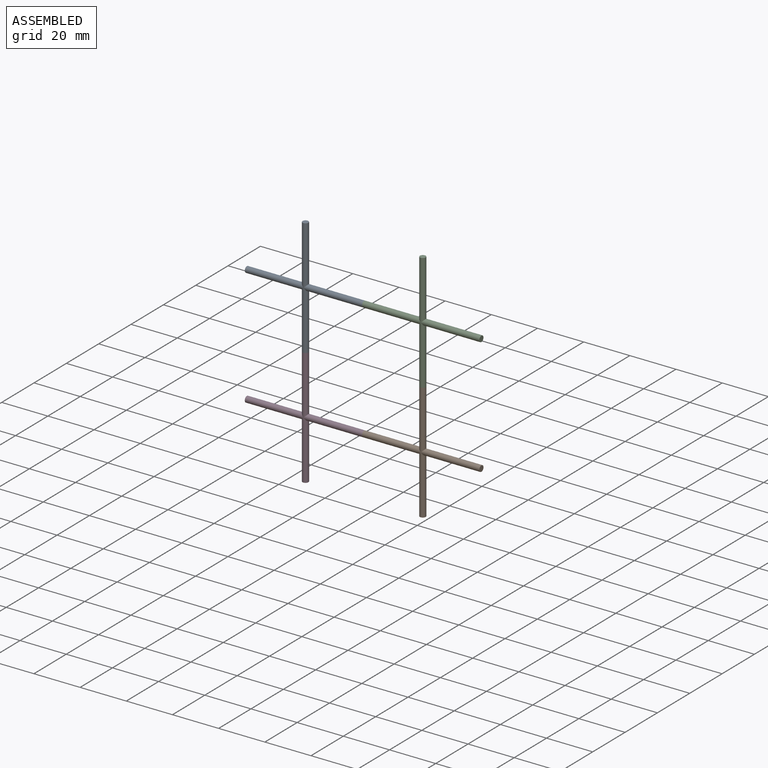
[diagram: assembled view]
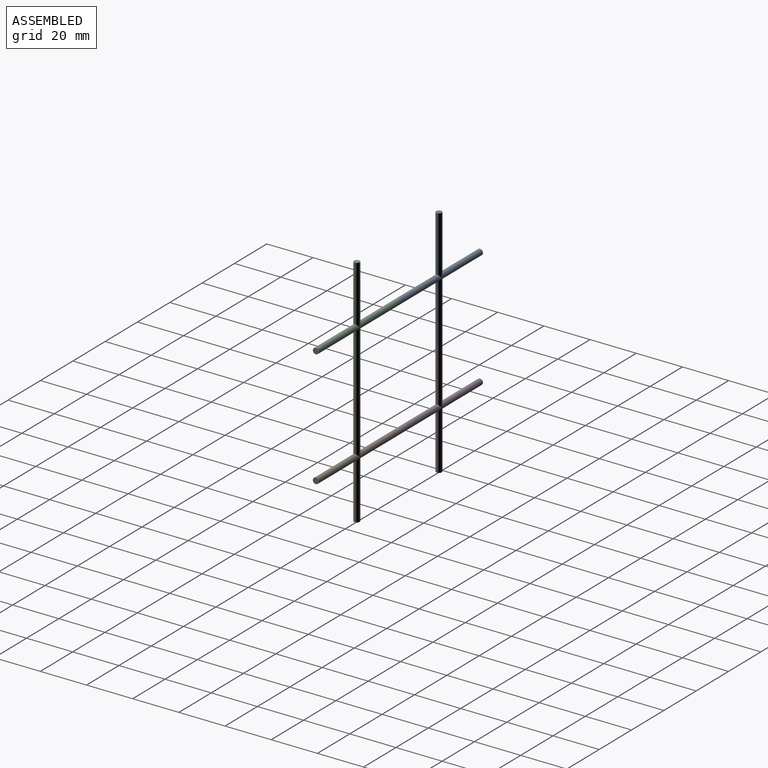
[diagram: assembled view, second angle]
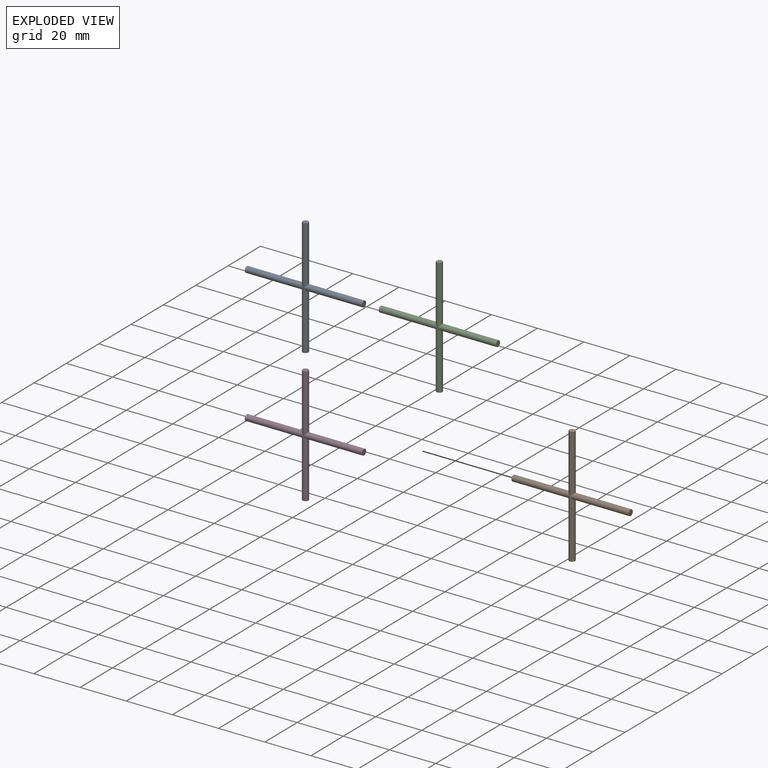
[diagram: exploded view]
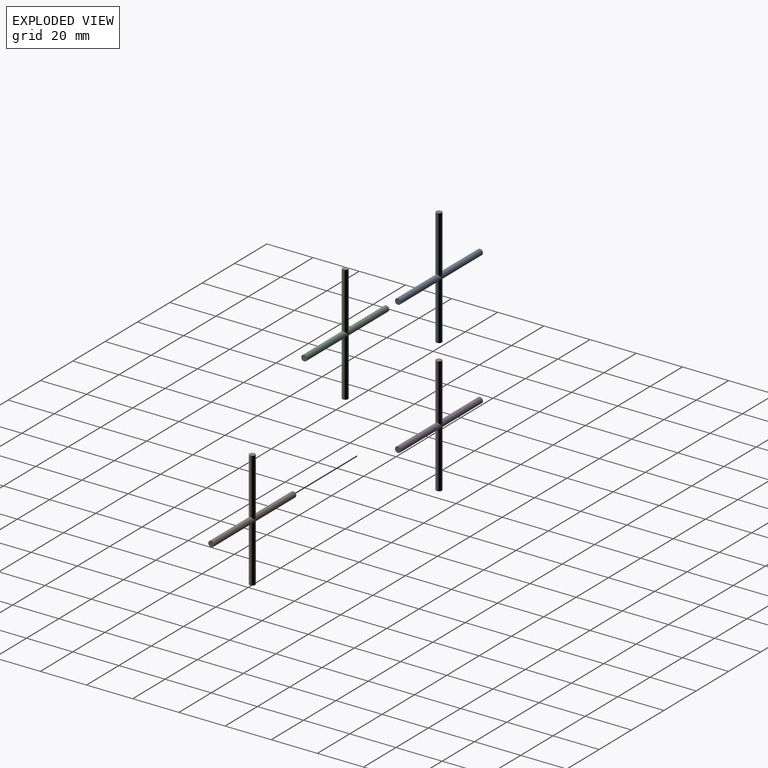
[diagram: exploded view, second angle]
ASSEMBLY  parts=4 mates=4
PART A: 8 faces, bbox 50.8x2.5x50.8 mm
  f0: cylinder r=1.27mm len=25.4mm, axis (0,0,-1), area 196.2mm2, adj f1,f3,f6
  f1: plane 2.54x2.54mm, normal (0,0,1), area 5.1mm2, adj f0
  f2: plane 2.54x2.54mm, normal (-1,0,0), area 5.1mm2, adj f3
  f3: cylinder r=1.27mm len=25.4mm, axis (-1,0,0), area 196.2mm2, adj f0,f2,f5
  f4: plane 2.54x2.54mm, normal (0,0,-1), area 5.1mm2, adj f5
  f5: cylinder r=1.27mm len=25.4mm, axis (0,0,-1), area 196.2mm2, adj f3,f4,f6
  f6: cylinder r=1.27mm len=25.4mm, axis (-1,0,0), area 196.2mm2, adj f0,f5,f7
  f7: plane 2.54x2.54mm, normal (1,0,0), area 5.1mm2, adj f6
PART B: same geometry as A
PART C: same geometry as A
PART D: same geometry as A
PLACE A t=(-22.18,-8.91,44.05)mm
PLACE B t=(28.62,-8.91,-6.75)mm
PLACE C t=(28.62,-8.91,44.05)mm
PLACE D t=(-22.18,-8.91,-6.75)mm
MATE parallel A.f0 <-> D.f0  axis (0,0,-1) through (-22.18,-8.91,18.65)mm
MATE parallel C.f3 <-> A.f3  axis (-1,0,0) through (3.22,-8.91,44.05)mm
MATE parallel B.f0 <-> C.f0  axis (0,0,-1) through (28.62,-8.91,18.65)mm
MATE parallel B.f3 <-> D.f3  axis (-1,0,0) through (3.22,-8.91,-6.75)mm
